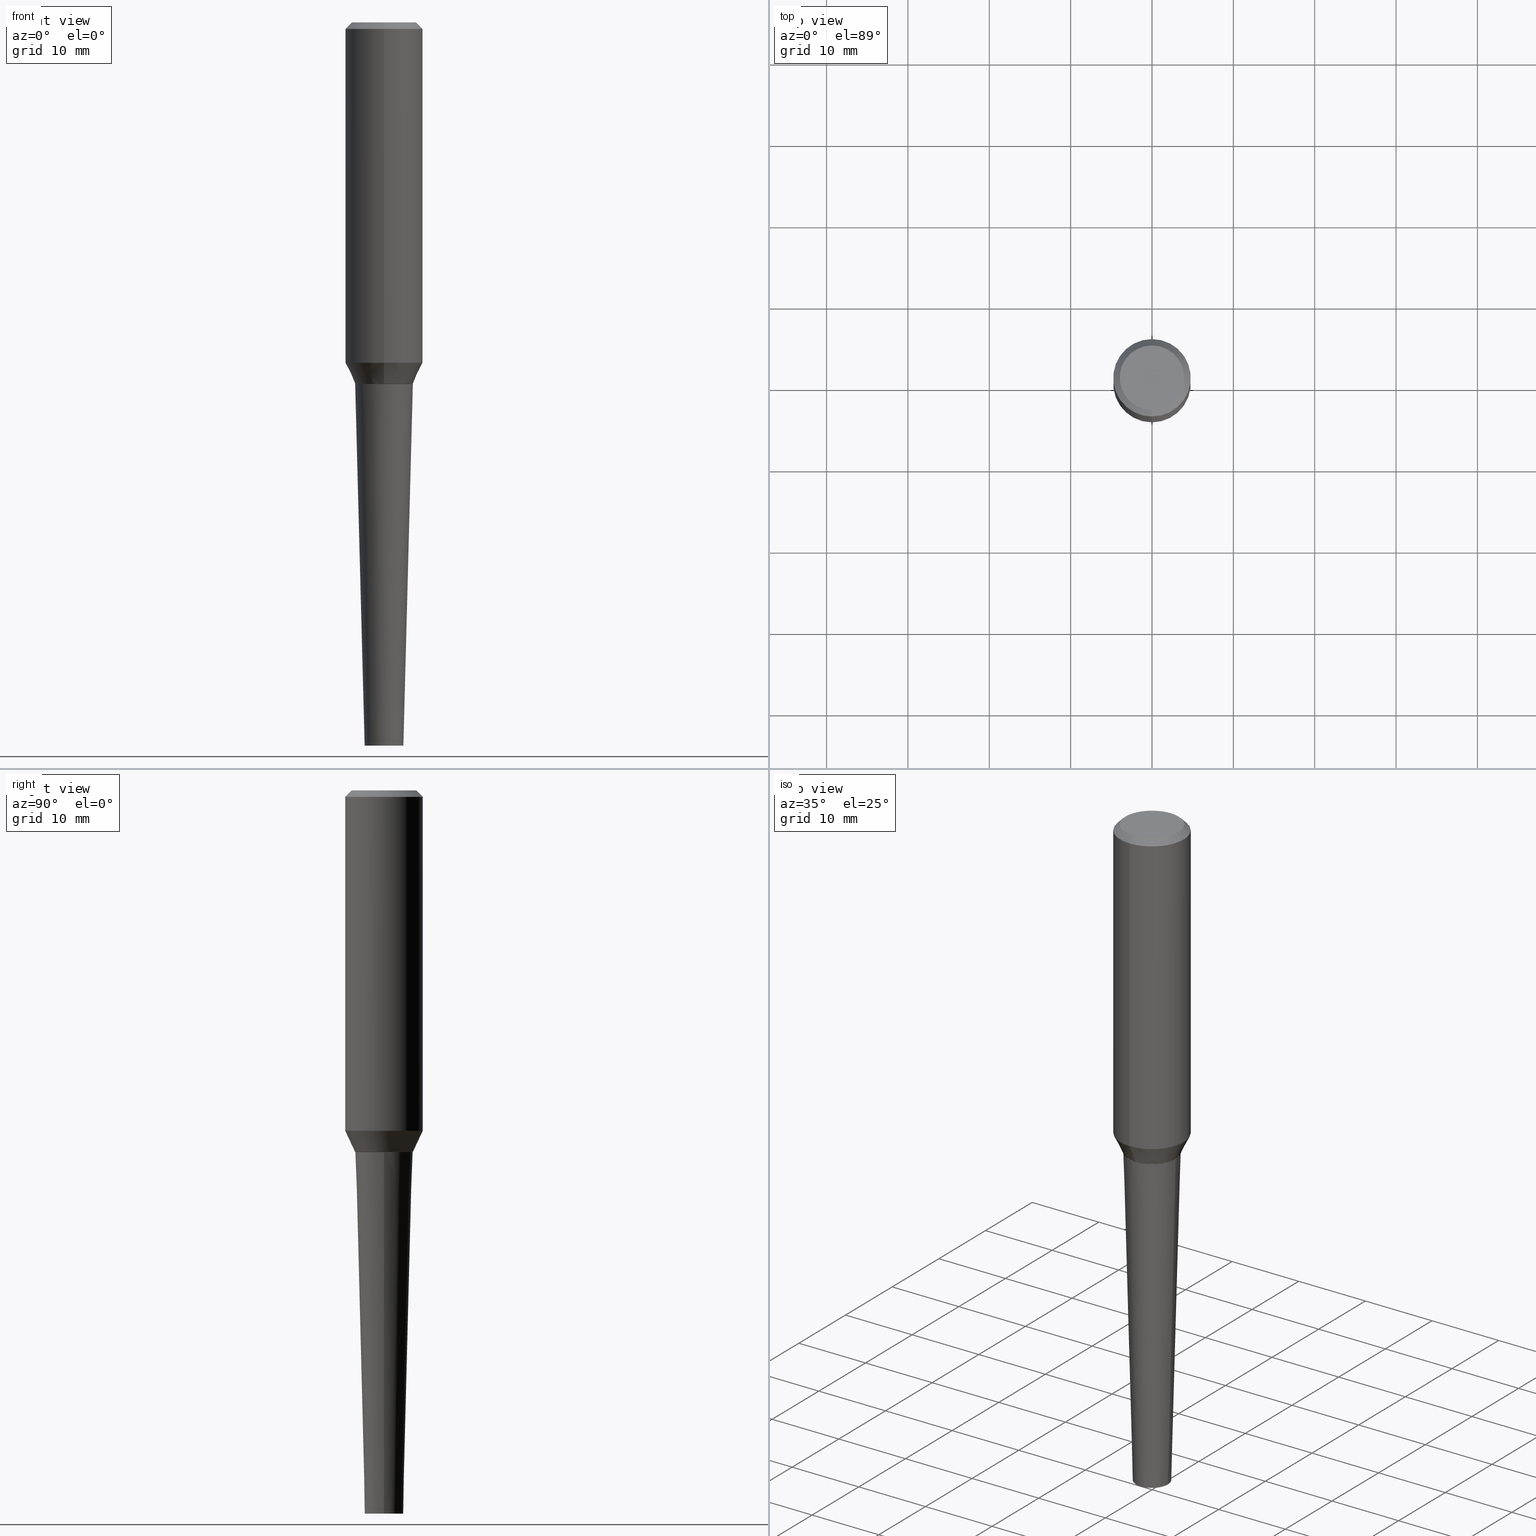
[diagram: canonical four-view strip — front | top / right | iso, engineering-drawing reading convention]
A machine part, canonical four-view strip (front | top / right | iso — engineering-drawing reading convention). The complete STEP part file that produces these views, byte-faithful:
ISO-10303-21;
HEADER;
FILE_DESCRIPTION (( 'STEP AP203' ),
    '1' );
FILE_NAME ('32318.STEP',
    '2024-03-04T15:07:12',
    ( '' ),
    ( '' ),
    'SwSTEP 2.0',
    'SolidWorks 2023',
    '' );
FILE_SCHEMA (( 'CONFIG_CONTROL_DESIGN' ));
ENDSEC;

DATA;
#1 = APPROVAL_STATUS ( 'not_yet_approved' ) ;
#2 =( NAMED_UNIT ( * ) SI_UNIT ( $, .STERADIAN. ) SOLID_ANGLE_UNIT ( ) );
#3 = CARTESIAN_POINT ( 'NONE',  ( 1.332267629550185482E-15, 0.1874999999999996947, -5.723651064753783135E-16 ) ) ;
#4 = CONICAL_SURFACE ( 'NONE', #199, 0.1390753627460646624, 0.7853981633973480259 ) ;
#5 = CALENDAR_DATE ( 2024, 4, 3 ) ;
#6 = EDGE_LOOP ( 'NONE', ( #196, #405, #241, #139 ) ) ;
#7 = DIRECTION ( 'NONE',  ( -6.982962677686266711E-15, -1.000000000000000000, 3.154607792043817714E-15 ) ) ;
#8 = EDGE_CURVE ( 'NONE', #409, #384, #254, .T. ) ;
#9 = APPROVAL_ROLE ( '' ) ;
#10 = DIRECTION ( 'NONE',  ( -2.445468806185136597E-29, 3.491481338843145583E-15, 1.000000000000000000 ) ) ;
#11 = CARTESIAN_POINT ( 'NONE',  ( 4.231880785566292542E-29, -6.178386600669429355E-15, -1.750000000000000222 ) ) ;
#12 = EDGE_LOOP ( 'NONE', ( #292, #369, #341, #204 ) ) ;
#13 = AXIS2_PLACEMENT_3D ( 'NONE', #173, #10, #401 ) ;
#14 = FACE_OUTER_BOUND ( 'NONE', #243, .T. ) ;
#15 = EDGE_CURVE ( 'NONE', #50, #267, #294, .T. ) ;
#16 = ORIENTED_EDGE ( 'NONE', *, *, #190, .F. ) ;
#17 = CARTESIAN_POINT ( 'NONE',  ( 1.200196710227327485E-15, 0.1562500000000000000, -4.857847843328356839E-16 ) ) ;
#18 = APPROVAL ( #94, 'UNSPECIFIED' ) ;
#19 = VERTEX_POINT ( 'NONE', #356 ) ;
#20 = DIRECTION ( 'NONE',  ( -6.982962677686265922E-15, -1.000000000000000000, 3.902299038693986834E-15 ) ) ;
#21 = DIRECTION ( 'NONE',  ( -6.982962677686265922E-15, -1.000000000000000000, 3.154607792043817320E-15 ) ) ;
#22 = CIRCLE ( 'NONE', #310, 0.1390753627460646624 ) ;
#23 = EDGE_CURVE ( 'NONE', #158, #377, #387, .T. ) ;
#24 = LINE ( 'NONE', #340, #358 ) ;
#25 = FACE_OUTER_BOUND ( 'NONE', #353, .T. ) ;
#26 = LINE ( 'NONE', #247, #325 ) ;
#27 = VECTOR ( 'NONE', #277, 39.37007874015748143 ) ;
#28 = CARTESIAN_POINT ( 'NONE',  ( 0.000000000000000000, 0.000000000000000000, 0.000000000000000000 ) ) ;
#29 = UNCERTAINTY_MEASURE_WITH_UNIT (LENGTH_MEASURE( 1.000000000000000082E-05 ), #31, 'distance_accuracy_value', 'NONE');
#30 = COORDINATED_UNIVERSAL_TIME_OFFSET ( 5, 0, .BEHIND. ) ;
#31 =( CONVERSION_BASED_UNIT ( 'INCH', #68 ) LENGTH_UNIT ( ) NAMED_UNIT ( #231 ) );
#32 = PLANE ( 'NONE',  #230 ) ;
#33 = AXIS2_PLACEMENT_3D ( 'NONE', #191, #225, #7 ) ;
#34 = APPLICATION_CONTEXT ( 'configuration controlled 3d designs of mechanical parts and assemblies' ) ;
#35 = ADVANCED_FACE ( 'NONE', ( #323 ), #32, .F. ) ;
#36 = AXIS2_PLACEMENT_3D ( 'NONE', #328, #169, #236 ) ;
#37 = APPROVAL_PERSON_ORGANIZATION ( #164, #281, #9 ) ;
#38 = CARTESIAN_POINT ( 'NONE',  ( 4.348926392121618958E-29, -6.004218604581146241E-15, -1.749063130645135855 ) ) ;
#39 = DIRECTION ( 'NONE',  ( -6.982962677686266711E-15, -1.000000000000000000, 3.154607792043817714E-15 ) ) ;
#40 = VERTEX_POINT ( 'NONE', #67 ) ;
#41 = EDGE_CURVE ( 'NONE', #19, #40, #144, .T. ) ;
#42 = CARTESIAN_POINT ( 'NONE',  ( 4.348926392121618958E-29, -6.004218604581146241E-15, -1.749063130645135855 ) ) ;
#43 = VERTEX_POINT ( 'NONE', #133 ) ;
#44 = CLOSED_SHELL ( 'NONE', ( #297, #212, #349, #197, #273, #224, #35, #283, #332, #125 ) ) ;
#45 = DIRECTION ( 'NONE',  ( -4.937700262164054215E-15, -0.7071067811864744090, 0.7071067811866206254 ) ) ;
#46 = EDGE_CURVE ( 'NONE', #172, #237, #286, .T. ) ;
#47 = ORIENTED_EDGE ( 'NONE', *, *, #346, .F. ) ;
#48 = CARTESIAN_POINT ( 'NONE',  ( 4.351437863747161445E-29, -6.007174059948126289E-15, -1.750000000000000000 ) ) ;
#49 = EDGE_CURVE ( 'NONE', #40, #19, #362, .T. ) ;
#50 = VERTEX_POINT ( 'NONE', #239 ) ;
#51 = CYLINDRICAL_SURFACE ( 'NONE', #279, 0.1875000000000001943 ) ;
#52 = VERTEX_POINT ( 'NONE', #296 ) ;
#53 = ADVANCED_FACE ( 'NONE', ( #266 ), #260, .T. ) ;
#54 = DIRECTION ( 'NONE',  ( -2.680706346625087460E-29, 3.154607792043817320E-15, 1.000000000000000000 ) ) ;
#55 = CARTESIAN_POINT ( 'NONE',  ( -1.286343374582167887E-15, -0.1875000000000010270, -0.03124999999999950734 ) ) ;
#56 = PRODUCT ( '32318', '32318', '', ( #357 ) ) ;
#57 = DIRECTION ( 'NONE',  ( -2.445468806185136597E-29, 3.491481338843145583E-15, 1.000000000000000000 ) ) ;
#58 = DIRECTION ( 'NONE',  ( -2.680706346625087460E-29, 3.154607792043817320E-15, 1.000000000000000000 ) ) ;
#59 = ADVANCED_FACE ( 'NONE', ( #330 ), #324, .T. ) ;
#60 = AXIS2_PLACEMENT_3D ( 'NONE', #258, #392, #229 ) ;
#61 = DATE_AND_TIME ( #352, #256 ) ;
#62 = APPLICATION_CONTEXT ( 'configuration controlled 3d designs of mechanical parts and assemblies' ) ;
#63 = PERSON_AND_ORGANIZATION_ROLE ( 'creator' ) ;
#64 = CARTESIAN_POINT ( 'NONE',  ( -1.309305502066179544E-15, -0.1875000000000006661, 6.106128155410544140E-16 ) ) ;
#65 = CC_DESIGN_PERSON_AND_ORGANIZATION_ASSIGNMENT ( #293, #70, ( #163 ) ) ;
#66 = DATE_AND_TIME ( #123, #182 ) ;
#67 = CARTESIAN_POINT ( 'NONE',  ( -9.777001911802864453E-16, -0.1400122321009344417, -1.749063130645135411 ) ) ;
#68 = LENGTH_MEASURE_WITH_UNIT ( LENGTH_MEASURE( 0.02539999999999999897 ), #252 );
#69 = DIRECTION ( 'NONE',  ( 1.000000000000000000, -6.982962677686264344E-15, 0.000000000000000000 ) ) ;
#70 = PERSON_AND_ORGANIZATION_ROLE ( 'creator' ) ;
#71 = LINE ( 'NONE', #268, #343 ) ;
#72 = AXIS2_PLACEMENT_3D ( 'NONE', #113, #218, #210 ) ;
#73 = DIRECTION ( 'NONE',  ( 2.438088387897960049E-29, -3.491481338843145188E-15, -1.000000000000000000 ) ) ;
#74 = EDGE_LOOP ( 'NONE', ( #85, #259, #112, #217 ) ) ;
#75 = DIRECTION ( 'NONE',  ( -2.445468806185136597E-29, 3.491481338843145583E-15, 1.000000000000000000 ) ) ;
#76 = ORIENTED_EDGE ( 'NONE', *, *, #46, .T. ) ;
#77 = APPROVAL_DATE_TIME ( #105, #281 ) ;
#78 = DIRECTION ( 'NONE',  ( -2.680706346625087460E-29, 3.154607792043817320E-15, 1.000000000000000000 ) ) ;
#79 = ORIENTED_EDGE ( 'NONE', *, *, #390, .T. ) ;
#80 = VECTOR ( 'NONE', #189, 39.37007874015748143 ) ;
#81 =( GEOMETRIC_REPRESENTATION_CONTEXT ( 3 ) GLOBAL_UNCERTAINTY_ASSIGNED_CONTEXT ( ( #29 ) ) GLOBAL_UNIT_ASSIGNED_CONTEXT ( ( #31, #97, #2 ) ) REPRESENTATION_CONTEXT ( 'NONE', 'WORKASPACE' ) );
#82 = CARTESIAN_POINT ( 'NONE',  ( -9.711580674414047337E-16, -0.1390753627460706576, -1.749999999999999334 ) ) ;
#83 = ORIENTED_EDGE ( 'NONE', *, *, #122, .F. ) ;
#84 = CARTESIAN_POINT ( 'NONE',  ( 4.351437863747161445E-29, -6.007174059948126289E-15, -1.750000000000000000 ) ) ;
#85 = ORIENTED_EDGE ( 'NONE', *, *, #261, .F. ) ;
#86 = CARTESIAN_POINT ( 'NONE',  ( 0.1395753627460647461, -7.084741891755795010E-15, -1.750000000000000000 ) ) ;
#87 = COORDINATED_UNIVERSAL_TIME_OFFSET ( 5, 0, .BEHIND. ) ;
#88 = CIRCLE ( 'NONE', #165, 0.1395753627460647461 ) ;
#89 = CARTESIAN_POINT ( 'NONE',  ( 4.348926392121618958E-29, -6.004218604581146241E-15, -1.749063130645135855 ) ) ;
#90 = SECURITY_CLASSIFICATION ( '', '', #124 ) ;
#91 = CARTESIAN_POINT ( 'NONE',  ( 9.881898872242144353E-16, 0.1390753627460586395, -1.750000000000000444 ) ) ;
#92 = CC_DESIGN_DATE_AND_TIME_ASSIGNMENT ( #66, #249, ( #163 ) ) ;
#93 = CARTESIAN_POINT ( 'NONE',  ( -3.397982428467408395E-30, -4.866104238714468673E-16, 1.912385453283800096E-17 ) ) ;
#94 = APPROVAL_STATUS ( 'not_yet_approved' ) ;
#95 = AXIS2_PLACEMENT_3D ( 'NONE', #248, #148, #275 ) ;
#96 = PERSON_AND_ORGANIZATION_ROLE ( 'classification_officer' ) ;
#97 =( NAMED_UNIT ( * ) PLANE_ANGLE_UNIT ( ) SI_UNIT ( $, .RADIAN. ) );
#98 = PERSON ( 'UNSPECIFIED', 'UNSPECIFIED', 'UNSPECIFIED', ('UNSPECIFIED'), ('UNSPECIFIED'), ('UNSPECIFIED') ) ;
#99 = COORDINATED_UNIVERSAL_TIME_OFFSET ( 5, 0, .BEHIND. ) ;
#100 = APPROVAL_PERSON_ORGANIZATION ( #359, #179, #195 ) ;
#101 = DIRECTION ( 'NONE',  ( -2.680706346625087460E-29, 3.154607792043817320E-15, 1.000000000000000000 ) ) ;
#102 = DIRECTION ( 'NONE',  ( -2.680706346625087460E-29, 3.154607792043817320E-15, 1.000000000000000000 ) ) ;
#103 = ORIENTED_EDGE ( 'NONE', *, *, #413, .F. ) ;
#104 = AXIS2_PLACEMENT_3D ( 'NONE', #108, #75, #167 ) ;
#105 = DATE_AND_TIME ( #329, #303 ) ;
#106 = CARTESIAN_POINT ( 'NONE',  ( -9.711580674414047337E-16, -0.1390753627460706576, -1.749999999999999334 ) ) ;
#107 = CC_DESIGN_PERSON_AND_ORGANIZATION_ASSIGNMENT ( #386, #96, ( #90 ) ) ;
#108 = CARTESIAN_POINT ( 'NONE',  ( 8.559140821647976968E-29, -1.222018468595100934E-14, -3.500000000000000000 ) ) ;
#109 = DIRECTION ( 'NONE',  ( 2.438088387897960049E-29, -3.491481338843145188E-15, -1.000000000000000000 ) ) ;
#110 = ORIENTED_EDGE ( 'NONE', *, *, #8, .T. ) ;
#111 = LINE ( 'NONE', #181, #415 ) ;
#112 = ORIENTED_EDGE ( 'NONE', *, *, #190, .T. ) ;
#113 = CARTESIAN_POINT ( 'NONE',  ( -2.560261695147064885E-30, -5.851919173728164913E-16, -0.03125000000000010408 ) ) ;
#114 = EDGE_LOOP ( 'NONE', ( #402, #334, #132, #16 ) ) ;
#115 = LINE ( 'NONE', #414, #271 ) ;
#116 = ADVANCED_FACE ( 'NONE', ( #234 ), #317, .T. ) ;
#117 = AXIS2_PLACEMENT_3D ( 'NONE', #48, #101, #363 ) ;
#118 = FACE_OUTER_BOUND ( 'NONE', #373, .T. ) ;
#119 = EDGE_CURVE ( 'NONE', #377, #267, #370, .T. ) ;
#120 = DIRECTION ( 'NONE',  ( -0.02617694830786604712, 3.676283300035236100E-15, 0.9996573249755573709 ) ) ;
#121 = PRODUCT_DEFINITION_SHAPE ( 'NONE', 'NONE',  #163 ) ;
#122 = EDGE_CURVE ( 'NONE', #136, #52, #385, .T. ) ;
#123 = CALENDAR_DATE ( 2024, 4, 3 ) ;
#124 = SECURITY_CLASSIFICATION_LEVEL ( 'unclassified' ) ;
#125 = ADVANCED_FACE ( 'NONE', ( #205 ), #302, .T. ) ;
#126 = AXIS2_PLACEMENT_3D ( 'NONE', #42, #399, #140 ) ;
#127 = DIRECTION ( 'NONE',  ( -2.445468806185136597E-29, 3.491481338843145583E-15, 1.000000000000000000 ) ) ;
#128 = CLOSED_SHELL ( 'NONE', ( #59, #53, #116, #160 ) ) ;
#129 = CIRCLE ( 'NONE', #177, 0.09375000000000006939 ) ;
#130 = EDGE_CURVE ( 'NONE', #267, #377, #220, .T. ) ;
#131 = FACE_OUTER_BOUND ( 'NONE', #6, .T. ) ;
#132 = ORIENTED_EDGE ( 'NONE', *, *, #390, .F. ) ;
#133 = CARTESIAN_POINT ( 'NONE',  ( 9.915183157964884947E-16, 0.1390753627460586395, -1.750000000000000444 ) ) ;
#134 = CC_DESIGN_PERSON_AND_ORGANIZATION_ASSIGNMENT ( #255, #161, ( #56 ) ) ;
#135 = AXIS2_PLACEMENT_3D ( 'NONE', #203, #371, #366 ) ;
#136 = VERTEX_POINT ( 'NONE', #300 ) ;
#137 = PRODUCT_DEFINITION_FORMATION_WITH_SPECIFIED_SOURCE ( 'ANY', '', #56, .NOT_KNOWN. ) ;
#138 = CARTESIAN_POINT ( 'NONE',  ( -1.309305502066133790E-15, -0.1875000000000056066, -1.647225283746024838 ) ) ;
#139 = ORIENTED_EDGE ( 'NONE', *, *, #149, .F. ) ;
#140 = DIRECTION ( 'NONE',  ( -6.982962677686265922E-15, -1.000000000000000000, 3.902299038693986045E-15 ) ) ;
#141 = ORIENTED_EDGE ( 'NONE', *, *, #290, .F. ) ;
#142 = CARTESIAN_POINT ( 'NONE',  ( -1.179148093366988298E-15, -0.1562500000000009714, 5.000301506808602607E-16 ) ) ;
#143 = ORIENTED_EDGE ( 'NONE', *, *, #316, .T. ) ;
#144 = CIRCLE ( 'NONE', #379, 0.1400122321009285020 ) ;
#145 = CONICAL_SURFACE ( 'NONE', #95, 0.1875000000000004718, 0.7853981633974461696 ) ;
#146 = CARTESIAN_POINT ( 'NONE',  ( -1.286343374582167887E-15, -0.1875000000000010270, -0.03124999999999950734 ) ) ;
#147 = CARTESIAN_POINT ( 'NONE',  ( 4.351437863747161445E-29, -6.007174059948126289E-15, -1.750000000000000000 ) ) ;
#148 = DIRECTION ( 'NONE',  ( 2.680706346625087460E-29, -3.154607792043817320E-15, -1.000000000000000000 ) ) ;
#149 = EDGE_CURVE ( 'NONE', #184, #40, #333, .T. ) ;
#150 = CC_DESIGN_APPROVAL ( #179, ( #163 ) ) ;
#151 = DIRECTION ( 'NONE',  ( -2.445468806185136597E-29, 3.491481338843145583E-15, 1.000000000000000000 ) ) ;
#152 = COORDINATED_UNIVERSAL_TIME_OFFSET ( 5, 0, .BEHIND. ) ;
#153 = PERSON_AND_ORGANIZATION_ROLE ( 'design_supplier' ) ;
#154 = AXIS2_PLACEMENT_3D ( 'NONE', #38, #102, #20 ) ;
#155 = COORDINATED_UNIVERSAL_TIME_OFFSET ( 5, 0, .BEHIND. ) ;
#156 = CIRCLE ( 'NONE', #287, 0.1874999999999999445 ) ;
#157 = CONICAL_SURFACE ( 'NONE', #117, 0.1390753627460646624, 0.7853981633973480259 ) ;
#158 = VERTEX_POINT ( 'NONE', #138 ) ;
#159 = CC_DESIGN_APPROVAL ( #281, ( #90 ) ) ;
#160 = ADVANCED_FACE ( 'NONE', ( #14 ), #361, .F. ) ;
#161 = PERSON_AND_ORGANIZATION_ROLE ( 'design_owner' ) ;
#162 = EDGE_LOOP ( 'NONE', ( #76, #263 ) ) ;
#163 = PRODUCT_DEFINITION ( 'UNKNOWN', '', #137, #282 ) ;
#164 = PERSON_AND_ORGANIZATION ( #98, #372 ) ;
#165 = AXIS2_PLACEMENT_3D ( 'NONE', #312, #57, #374 ) ;
#166 = CYLINDRICAL_SURFACE ( 'NONE', #60, 0.1875000000000001943 ) ;
#167 = DIRECTION ( 'NONE',  ( 1.000000000000000000, -6.982962677686257244E-15, 0.000000000000000000 ) ) ;
#168 = ORIENTED_EDGE ( 'NONE', *, *, #253, .F. ) ;
#169 = DIRECTION ( 'NONE',  ( -2.680706346625087460E-29, 3.154607792043817320E-15, 1.000000000000000000 ) ) ;
#170 = EDGE_LOOP ( 'NONE', ( #79, #304, #365, #308 ) ) ;
#171 = DIRECTION ( 'NONE',  ( -1.000000000000000000, 6.982962677686265922E-15, -4.876176775795935793E-29 ) ) ;
#172 = VERTEX_POINT ( 'NONE', #17 ) ;
#173 = CARTESIAN_POINT ( 'NONE',  ( 8.559140821647976968E-29, -1.222018468595100934E-14, -3.500000000000000000 ) ) ;
#174 = ORIENTED_EDGE ( 'NONE', *, *, #411, .T. ) ;
#175 = DIRECTION ( 'NONE',  ( 0.02617694830786604712, 3.307492242340466312E-15, 0.9996573249755573709 ) ) ;
#176 = ORIENTED_EDGE ( 'NONE', *, *, #130, .T. ) ;
#177 = AXIS2_PLACEMENT_3D ( 'NONE', #270, #151, #280 ) ;
#178 = DIRECTION ( 'NONE',  ( -2.680706346625087460E-29, 3.154607792043817320E-15, 1.000000000000000000 ) ) ;
#179 = APPROVAL ( #1, 'UNSPECIFIED' ) ;
#180 = DIRECTION ( 'NONE',  ( 4.937700262164538576E-15, 0.7071067811865437980, -0.7071067811865512365 ) ) ;
#181 = CARTESIAN_POINT ( 'NONE',  ( 9.948467443687619624E-16, 0.1400122321009225068, -1.749063130645136299 ) ) ;
#182 = LOCAL_TIME ( 10, 7, 12.00000000000000000, #152 ) ;
#183 = CARTESIAN_POINT ( 'NONE',  ( 4.075929029612539620E-29, -5.682960139228246655E-15, -1.647225283746025504 ) ) ;
#184 = VERTEX_POINT ( 'NONE', #106 ) ;
#185 = APPROVAL_DATE_TIME ( #61, #18 ) ;
#186 = ORIENTED_EDGE ( 'NONE', *, *, #406, .T. ) ;
#187 = ORIENTED_EDGE ( 'NONE', *, *, #290, .T. ) ;
#188 = DIRECTION ( 'NONE',  ( 0.000000000000000000, 0.000000000000000000, 1.000000000000000000 ) ) ;
#189 = DIRECTION ( 'NONE',  ( -2.680706346625087460E-29, 3.154607792043817320E-15, 1.000000000000000000 ) ) ;
#190 = EDGE_CURVE ( 'NONE', #40, #158, #71, .T. ) ;
#191 = CARTESIAN_POINT ( 'NONE',  ( -3.397982428467407694E-30, -4.866104238714468673E-16, 7.122683174012249869E-18 ) ) ;
#192 = AXIS2_PLACEMENT_3D ( 'NONE', #89, #416, #245 ) ;
#193 = CARTESIAN_POINT ( 'NONE',  ( 4.348926392121618958E-29, -6.004218604581146241E-15, -1.749063130645135855 ) ) ;
#194 = APPROVAL_DATE_TIME ( #284, #179 ) ;
#195 = APPROVAL_ROLE ( '' ) ;
#196 = ORIENTED_EDGE ( 'NONE', *, *, #354, .T. ) ;
#197 = ADVANCED_FACE ( 'NONE', ( #131 ), #157, .T. ) ;
#198 = CARTESIAN_POINT ( 'NONE',  ( 8.559140821647976968E-29, -1.222018468595100934E-14, -3.500000000000000000 ) ) ;
#199 = AXIS2_PLACEMENT_3D ( 'NONE', #84, #178, #347 ) ;
#200 = PRODUCT_RELATED_PRODUCT_CATEGORY ( 'detail', '', ( #56 ) ) ;
#201 = FACE_OUTER_BOUND ( 'NONE', #331, .T. ) ;
#202 = ORIENTED_EDGE ( 'NONE', *, *, #8, .F. ) ;
#203 = CARTESIAN_POINT ( 'NONE',  ( -2.560261695147064885E-30, -5.851919173728164913E-16, -0.03125000000000010408 ) ) ;
#204 = ORIENTED_EDGE ( 'NONE', *, *, #301, .F. ) ;
#205 = FACE_OUTER_BOUND ( 'NONE', #74, .T. ) ;
#206 = AXIS2_PLACEMENT_3D ( 'NONE', #183, #319, #274 ) ;
#207 = CARTESIAN_POINT ( 'NONE',  ( -3.397982428467407694E-30, -4.866104238714468673E-16, 7.122683174012249869E-18 ) ) ;
#208 = LINE ( 'NONE', #55, #27 ) ;
#209 = EDGE_LOOP ( 'NONE', ( #83, #313 ) ) ;
#210 = DIRECTION ( 'NONE',  ( 6.982962677686265922E-15, 1.000000000000000000, -3.164390592661096858E-15 ) ) ;
#211 = AXIS2_PLACEMENT_3D ( 'NONE', #391, #109, #336 ) ;
#212 = ADVANCED_FACE ( 'NONE', ( #228 ), #166, .T. ) ;
#213 = CIRCLE ( 'NONE', #33, 0.1562500000000004718 ) ;
#214 = APPROVAL_PERSON_ORGANIZATION ( #383, #18, #221 ) ;
#215 = FACE_OUTER_BOUND ( 'NONE', #114, .T. ) ;
#216 = CARTESIAN_POINT ( 'NONE',  ( 1.309305502066175600E-15, 0.1874999999999998890, -0.03125000000000069389 ) ) ;
#217 = ORIENTED_EDGE ( 'NONE', *, *, #406, .F. ) ;
#218 = DIRECTION ( 'NONE',  ( 2.680706346625087460E-29, -3.154607792043817320E-15, -1.000000000000000000 ) ) ;
#219 = ORIENTED_EDGE ( 'NONE', *, *, #301, .T. ) ;
#220 = CIRCLE ( 'NONE', #36, 0.1875000000000004718 ) ;
#221 = APPROVAL_ROLE ( '' ) ;
#222 = CC_DESIGN_APPROVAL ( #18, ( #137 ) ) ;
#223 = DIRECTION ( 'NONE',  ( 6.982962677686265922E-15, 1.000000000000000000, -3.154607792043817320E-15 ) ) ;
#224 = ADVANCED_FACE ( 'NONE', ( #201 ), #298, .F. ) ;
#225 = DIRECTION ( 'NONE',  ( -2.680706346625087460E-29, 3.154607792043817320E-15, 1.000000000000000000 ) ) ;
#226 = AXIS2_PLACEMENT_3D ( 'NONE', #28, #188, #250 ) ;
#227 = ORIENTED_EDGE ( 'NONE', *, *, #46, .F. ) ;
#228 = FACE_OUTER_BOUND ( 'NONE', #170, .T. ) ;
#229 = DIRECTION ( 'NONE',  ( -6.982962677686265922E-15, -1.000000000000000000, 3.154607792043817320E-15 ) ) ;
#230 = AXIS2_PLACEMENT_3D ( 'NONE', #291, #388, #223 ) ;
#231 = DIMENSIONAL_EXPONENTS ( 1.000000000000000000, 0.000000000000000000, 0.000000000000000000, 0.000000000000000000, 0.000000000000000000, 0.000000000000000000, 0.000000000000000000 ) ;
#232 = CONICAL_SURFACE ( 'NONE', #72, 0.1875000000000004718, 0.7853981633974461696 ) ;
#233 = ORIENTED_EDGE ( 'NONE', *, *, #41, .F. ) ;
#234 = FACE_OUTER_BOUND ( 'NONE', #12, .T. ) ;
#235 = ORIENTED_EDGE ( 'NONE', *, *, #15, .F. ) ;
#236 = DIRECTION ( 'NONE',  ( -6.982962677686265922E-15, -1.000000000000000000, 3.164390592661096858E-15 ) ) ;
#237 = VERTEX_POINT ( 'NONE', #142 ) ;
#238 = EDGE_CURVE ( 'NONE', #52, #136, #129, .T. ) ;
#239 = CARTESIAN_POINT ( 'NONE',  ( 1.332267629550207373E-15, 0.1874999999999942824, -1.647225283746025948 ) ) ;
#240 = AXIS2_PLACEMENT_3D ( 'NONE', #368, #73, #171 ) ;
#241 = ORIENTED_EDGE ( 'NONE', *, *, #49, .F. ) ;
#242 = DIRECTION ( 'NONE',  ( -6.982962677686265922E-15, -1.000000000000000000, 3.154607792043817320E-15 ) ) ;
#243 = EDGE_LOOP ( 'NONE', ( #110, #219 ) ) ;
#244 = DIRECTION ( 'NONE',  ( -2.680706346625087460E-29, 3.154607792043817320E-15, 1.000000000000000000 ) ) ;
#245 = DIRECTION ( 'NONE',  ( -6.982962677686265922E-15, -1.000000000000000000, 3.902299038693986045E-15 ) ) ;
#246 = CIRCLE ( 'NONE', #206, 0.1874999999999999445 ) ;
#247 = CARTESIAN_POINT ( 'NONE',  ( 1.309305502066175600E-15, 0.1874999999999998890, -0.03125000000000069389 ) ) ;
#248 = CARTESIAN_POINT ( 'NONE',  ( -2.560261695147064885E-30, -5.851919173728164913E-16, -0.03125000000000010408 ) ) ;
#249 = DATE_TIME_ROLE ( 'creation_date' ) ;
#250 = DIRECTION ( 'NONE',  ( 1.000000000000000000, 0.000000000000000000, 0.000000000000000000 ) ) ;
#251 = DIRECTION ( 'NONE',  ( -2.680706346625087460E-29, 3.154607792043817320E-15, 1.000000000000000000 ) ) ;
#252 =( LENGTH_UNIT ( ) NAMED_UNIT ( * ) SI_UNIT ( $, .METRE. ) );
#253 = EDGE_CURVE ( 'NONE', #43, #19, #407, .T. ) ;
#254 = CIRCLE ( 'NONE', #327, 0.1395753627460647461 ) ;
#255 = PERSON_AND_ORGANIZATION ( #98, #372 ) ;
#256 = LOCAL_TIME ( 10, 7, 12.00000000000000000, #30 ) ;
#257 = DIRECTION ( 'NONE',  ( -2.680706346625087460E-29, 3.154607792043817320E-15, 1.000000000000000000 ) ) ;
#258 = CARTESIAN_POINT ( 'NONE',  ( -3.397982428467408395E-30, -4.866104238714468673E-16, 1.912385453283800096E-17 ) ) ;
#259 = ORIENTED_EDGE ( 'NONE', *, *, #41, .T. ) ;
#260 = PLANE ( 'NONE',  #211 ) ;
#261 = EDGE_CURVE ( 'NONE', #19, #50, #111, .T. ) ;
#262 = ADVANCED_BREP_SHAPE_REPRESENTATION ( '32318', ( #264, #276, #226 ), #81 ) ;
#263 = ORIENTED_EDGE ( 'NONE', *, *, #413, .T. ) ;
#264 = MANIFOLD_SOLID_BREP ( 'Body-Move/Copy2[1]', #128 ) ;
#265 = APPROVAL_STATUS ( 'not_yet_approved' ) ;
#266 = FACE_OUTER_BOUND ( 'NONE', #209, .T. ) ;
#267 = VERTEX_POINT ( 'NONE', #216 ) ;
#268 = CARTESIAN_POINT ( 'NONE',  ( -9.777001911802872341E-16, -0.1400122321009345250, -1.749063130645135411 ) ) ;
#269 = ORIENTED_EDGE ( 'NONE', *, *, #122, .T. ) ;
#270 = CARTESIAN_POINT ( 'NONE',  ( 8.559140821647976968E-29, -1.222018468595100934E-14, -3.500000000000000000 ) ) ;
#271 = VECTOR ( 'NONE', #175, 39.37007874015748143 ) ;
#272 = ORIENTED_EDGE ( 'NONE', *, *, #130, .F. ) ;
#273 = ADVANCED_FACE ( 'NONE', ( #118 ), #4, .T. ) ;
#274 = DIRECTION ( 'NONE',  ( -6.982962677686266711E-15, -1.000000000000000000, 2.913971193241881555E-15 ) ) ;
#275 = DIRECTION ( 'NONE',  ( 6.982962677686265922E-15, 1.000000000000000000, -3.164390592661096858E-15 ) ) ;
#276 = MANIFOLD_SOLID_BREP ( 'Body-Move/Copy2[2]', #44 ) ;
#277 = DIRECTION ( 'NONE',  ( -4.851104656540951653E-15, -0.7071067811865482389, -0.7071067811865467956 ) ) ;
#278 = ORIENTED_EDGE ( 'NONE', *, *, #321, .F. ) ;
#279 = AXIS2_PLACEMENT_3D ( 'NONE', #93, #58, #21 ) ;
#280 = DIRECTION ( 'NONE',  ( 1.000000000000000000, -6.982962677686257244E-15, 0.000000000000000000 ) ) ;
#281 = APPROVAL ( #265, 'UNSPECIFIED' ) ;
#282 = DESIGN_CONTEXT ( 'detailed design', #62, 'design' ) ;
#283 = ADVANCED_FACE ( 'NONE', ( #345 ), #232, .T. ) ;
#284 = DATE_AND_TIME ( #5, #337 ) ;
#285 = CARTESIAN_POINT ( 'NONE',  ( 4.279570410823988484E-29, -6.110092342975504671E-15, -1.750000000000000000 ) ) ;
#286 = CIRCLE ( 'NONE', #350, 0.1562500000000004718 ) ;
#287 = AXIS2_PLACEMENT_3D ( 'NONE', #410, #244, #376 ) ;
#288 = CALENDAR_DATE ( 2024, 4, 3 ) ;
#289 = LOCAL_TIME ( 10, 7, 12.00000000000000000, #155 ) ;
#290 = EDGE_CURVE ( 'NONE', #237, #377, #208, .T. ) ;
#291 = CARTESIAN_POINT ( 'NONE',  ( 1.091087918388478976E-15, 0.1562500000000000000, -4.797841986534229262E-16 ) ) ;
#292 = ORIENTED_EDGE ( 'NONE', *, *, #316, .F. ) ;
#293 = PERSON_AND_ORGANIZATION ( #98, #372 ) ;
#294 = LINE ( 'NONE', #3, #395 ) ;
#295 = AXIS2_PLACEMENT_3D ( 'NONE', #11, #381, #242 ) ;
#296 = CARTESIAN_POINT ( 'NONE',  ( -0.09375000000000006939, -8.336200306624222789E-15, -3.500000000000000000 ) ) ;
#297 = ADVANCED_FACE ( 'NONE', ( #215 ), #344, .T. ) ;
#298 = PLANE ( 'NONE',  #295 ) ;
#299 = EDGE_LOOP ( 'NONE', ( #269, #143, #202, #47 ) ) ;
#300 = CARTESIAN_POINT ( 'NONE',  ( 0.09375000000000006939, -1.287483743698409606E-14, -3.500000000000000000 ) ) ;
#301 = EDGE_CURVE ( 'NONE', #384, #409, #88, .T. ) ;
#302 = CONICAL_SURFACE ( 'NONE', #126, 0.1400122321009285298, 0.4363323129985821058 ) ;
#303 = LOCAL_TIME ( 10, 7, 12.00000000000000000, #87 ) ;
#304 = ORIENTED_EDGE ( 'NONE', *, *, #15, .T. ) ;
#305 = DIRECTION ( 'NONE',  ( -6.982962677686265922E-15, -1.000000000000000000, 3.902299038693986834E-15 ) ) ;
#306 = EDGE_LOOP ( 'NONE', ( #141, #227, #367, #176 ) ) ;
#307 = DIRECTION ( 'NONE',  ( 1.000000000000000000, -6.982962677686257244E-15, 0.000000000000000000 ) ) ;
#308 = ORIENTED_EDGE ( 'NONE', *, *, #23, .F. ) ;
#309 = DIRECTION ( 'NONE',  ( -2.680706346625087460E-29, 3.154607792043817320E-15, 1.000000000000000000 ) ) ;
#310 = AXIS2_PLACEMENT_3D ( 'NONE', #147, #309, #382 ) ;
#311 = ORIENTED_EDGE ( 'NONE', *, *, #354, .F. ) ;
#312 = CARTESIAN_POINT ( 'NONE',  ( 4.279570410823988484E-29, -6.110092342975504671E-15, -1.750000000000000000 ) ) ;
#313 = ORIENTED_EDGE ( 'NONE', *, *, #238, .F. ) ;
#314 = FACE_OUTER_BOUND ( 'NONE', #375, .T. ) ;
#315 = DIRECTION ( 'NONE',  ( 5.024295867787556730E-15, 0.7071067811864788499, 0.7071067811866161845 ) ) ;
#316 = EDGE_CURVE ( 'NONE', #52, #384, #24, .T. ) ;
#317 = CONICAL_SURFACE ( 'NONE', #104, 0.09375000000000006939, 0.02617993877990783605 ) ;
#318 = CIRCLE ( 'NONE', #396, 0.1390753627460646624 ) ;
#319 = DIRECTION ( 'NONE',  ( -2.680706346625087460E-29, 3.154607792043817320E-15, 1.000000000000000000 ) ) ;
#320 = APPLICATION_PROTOCOL_DEFINITION ( 'international standard', 'config_control_design', 1994, #62 ) ;
#321 = EDGE_CURVE ( 'NONE', #172, #267, #26, .T. ) ;
#322 = PERSON_AND_ORGANIZATION ( #98, #372 ) ;
#323 = FACE_OUTER_BOUND ( 'NONE', #162, .T. ) ;
#324 = CONICAL_SURFACE ( 'NONE', #13, 0.09375000000000006939, 0.02617993877990783605 ) ;
#325 = VECTOR ( 'NONE', #180, 39.37007874015748143 ) ;
#326 = APPLICATION_PROTOCOL_DEFINITION ( 'international standard', 'config_control_design', 1994, #34 ) ;
#327 = AXIS2_PLACEMENT_3D ( 'NONE', #285, #127, #69 ) ;
#328 = CARTESIAN_POINT ( 'NONE',  ( -2.560261695147064885E-30, -5.851919173728164913E-16, -0.03125000000000010408 ) ) ;
#329 = CALENDAR_DATE ( 2024, 4, 3 ) ;
#330 = FACE_OUTER_BOUND ( 'NONE', #299, .T. ) ;
#331 = EDGE_LOOP ( 'NONE', ( #311, #389 ) ) ;
#332 = ADVANCED_FACE ( 'NONE', ( #314 ), #51, .T. ) ;
#333 = LINE ( 'NONE', #82, #351 ) ;
#334 = ORIENTED_EDGE ( 'NONE', *, *, #261, .T. ) ;
#335 = SHAPE_DEFINITION_REPRESENTATION ( #121, #262 ) ;
#336 = DIRECTION ( 'NONE',  ( -1.000000000000000000, 6.982962677686265922E-15, -4.876176775795935793E-29 ) ) ;
#337 = LOCAL_TIME ( 10, 7, 12.00000000000000000, #99 ) ;
#338 = ORIENTED_EDGE ( 'NONE', *, *, #149, .T. ) ;
#339 = DIRECTION ( 'NONE',  ( -2.445468806185136597E-29, 3.491481338843145583E-15, 1.000000000000000000 ) ) ;
#340 = CARTESIAN_POINT ( 'NONE',  ( -0.09375000000000006939, -1.155405087117591384E-14, -3.500000000000000000 ) ) ;
#341 = ORIENTED_EDGE ( 'NONE', *, *, #346, .T. ) ;
#342 = CARTESIAN_POINT ( 'NONE',  ( 4.351437863747161445E-29, -6.007174059948126289E-15, -1.750000000000000000 ) ) ;
#343 = VECTOR ( 'NONE', #404, 39.37007874015748854 ) ;
#344 = CONICAL_SURFACE ( 'NONE', #192, 0.1400122321009285298, 0.4363323129985821058 ) ;
#345 = FACE_OUTER_BOUND ( 'NONE', #306, .T. ) ;
#346 = EDGE_CURVE ( 'NONE', #136, #409, #115, .T. ) ;
#347 = DIRECTION ( 'NONE',  ( -6.982962677686265133E-15, -1.000000000000000000, 3.928586544336106530E-15 ) ) ;
#348 = CARTESIAN_POINT ( 'NONE',  ( -0.1395753627460647461, -5.118349742072530161E-15, -1.750000000000000000 ) ) ;
#349 = ADVANCED_FACE ( 'NONE', ( #25 ), #145, .T. ) ;
#350 = AXIS2_PLACEMENT_3D ( 'NONE', #207, #257, #39 ) ;
#351 = VECTOR ( 'NONE', #45, 39.37007874015748143 ) ;
#352 = CALENDAR_DATE ( 2024, 4, 3 ) ;
#353 = EDGE_LOOP ( 'NONE', ( #103, #187, #394, #278 ) ) ;
#354 = EDGE_CURVE ( 'NONE', #184, #43, #22, .T. ) ;
#355 = PERSON_AND_ORGANIZATION ( #98, #372 ) ;
#356 = CARTESIAN_POINT ( 'NONE',  ( 9.948467443687629485E-16, 0.1400122321009226178, -1.749063130645136299 ) ) ;
#357 = MECHANICAL_CONTEXT ( 'NONE', #34, 'mechanical' ) ;
#358 = VECTOR ( 'NONE', #120, 39.37007874015748143 ) ;
#359 = PERSON_AND_ORGANIZATION ( #98, #372 ) ;
#360 = CC_DESIGN_PERSON_AND_ORGANIZATION_ASSIGNMENT ( #355, #63, ( #137 ) ) ;
#361 = PLANE ( 'NONE',  #240 ) ;
#362 = CIRCLE ( 'NONE', #154, 0.1400122321009285020 ) ;
#363 = DIRECTION ( 'NONE',  ( -6.982962677686265133E-15, -1.000000000000000000, 3.928586544336106530E-15 ) ) ;
#364 = CC_DESIGN_PERSON_AND_ORGANIZATION_ASSIGNMENT ( #322, #153, ( #137 ) ) ;
#365 = ORIENTED_EDGE ( 'NONE', *, *, #119, .F. ) ;
#366 = DIRECTION ( 'NONE',  ( -6.982962677686265922E-15, -1.000000000000000000, 3.164390592661096858E-15 ) ) ;
#367 = ORIENTED_EDGE ( 'NONE', *, *, #321, .T. ) ;
#368 = CARTESIAN_POINT ( 'NONE',  ( 9.746495487803351072E-16, 0.1395753627460586399, -1.750000000000000666 ) ) ;
#369 = ORIENTED_EDGE ( 'NONE', *, *, #238, .T. ) ;
#370 = CIRCLE ( 'NONE', #135, 0.1875000000000004718 ) ;
#371 = DIRECTION ( 'NONE',  ( -2.680706346625087460E-29, 3.154607792043817320E-15, 1.000000000000000000 ) ) ;
#372 = ORGANIZATION ( 'UNSPECIFIED', 'UNSPECIFIED', '' ) ;
#373 = EDGE_LOOP ( 'NONE', ( #168, #174, #338, #233 ) ) ;
#374 = DIRECTION ( 'NONE',  ( 1.000000000000000000, -6.982962677686264344E-15, 0.000000000000000000 ) ) ;
#375 = EDGE_LOOP ( 'NONE', ( #235, #186, #400, #272 ) ) ;
#376 = DIRECTION ( 'NONE',  ( -6.982962677686266711E-15, -1.000000000000000000, 2.913971193241881555E-15 ) ) ;
#377 = VERTEX_POINT ( 'NONE', #146 ) ;
#378 = DIRECTION ( 'NONE',  ( -6.982962677686265133E-15, -1.000000000000000000, 3.928586544336106530E-15 ) ) ;
#379 = AXIS2_PLACEMENT_3D ( 'NONE', #193, #78, #305 ) ;
#380 = VECTOR ( 'NONE', #315, 39.37007874015748143 ) ;
#381 = DIRECTION ( 'NONE',  ( -2.680706346625086899E-29, 3.154607792043817320E-15, 1.000000000000000000 ) ) ;
#382 = DIRECTION ( 'NONE',  ( -6.982962677686265133E-15, -1.000000000000000000, 3.928586544336106530E-15 ) ) ;
#383 = PERSON_AND_ORGANIZATION ( #98, #372 ) ;
#384 = VERTEX_POINT ( 'NONE', #348 ) ;
#385 = CIRCLE ( 'NONE', #408, 0.09375000000000006939 ) ;
#386 = PERSON_AND_ORGANIZATION ( #98, #372 ) ;
#387 = LINE ( 'NONE', #64, #80 ) ;
#388 = DIRECTION ( 'NONE',  ( 2.680706346625086899E-29, -3.154607792043817320E-15, -1.000000000000000000 ) ) ;
#389 = ORIENTED_EDGE ( 'NONE', *, *, #411, .F. ) ;
#390 = EDGE_CURVE ( 'NONE', #158, #50, #246, .T. ) ;
#391 = CARTESIAN_POINT ( 'NONE',  ( 6.546527510331736872E-16, 0.09374999999998785694, -3.500000000000000444 ) ) ;
#392 = DIRECTION ( 'NONE',  ( -2.680706346625087460E-29, 3.154607792043817320E-15, 1.000000000000000000 ) ) ;
#393 = CC_DESIGN_DATE_AND_TIME_ASSIGNMENT ( #403, #397, ( #90 ) ) ;
#394 = ORIENTED_EDGE ( 'NONE', *, *, #119, .T. ) ;
#395 = VECTOR ( 'NONE', #251, 39.37007874015748143 ) ;
#396 = AXIS2_PLACEMENT_3D ( 'NONE', #342, #54, #378 ) ;
#397 = DATE_TIME_ROLE ( 'classification_date' ) ;
#398 = CC_DESIGN_SECURITY_CLASSIFICATION ( #90, ( #137 ) ) ;
#399 = DIRECTION ( 'NONE',  ( -2.680706346625087460E-29, 3.154607792043817320E-15, 1.000000000000000000 ) ) ;
#400 = ORIENTED_EDGE ( 'NONE', *, *, #23, .T. ) ;
#401 = DIRECTION ( 'NONE',  ( 1.000000000000000000, -6.982962677686257244E-15, 0.000000000000000000 ) ) ;
#402 = ORIENTED_EDGE ( 'NONE', *, *, #49, .T. ) ;
#403 = DATE_AND_TIME ( #288, #289 ) ;
#404 = DIRECTION ( 'NONE',  ( -2.951127548643972105E-15, -0.4226182617406963327, 0.9063077870366513800 ) ) ;
#405 = ORIENTED_EDGE ( 'NONE', *, *, #253, .T. ) ;
#406 = EDGE_CURVE ( 'NONE', #50, #158, #156, .T. ) ;
#407 = LINE ( 'NONE', #91, #380 ) ;
#408 = AXIS2_PLACEMENT_3D ( 'NONE', #198, #339, #307 ) ;
#409 = VERTEX_POINT ( 'NONE', #86 ) ;
#410 = CARTESIAN_POINT ( 'NONE',  ( 4.075929029612539620E-29, -5.682960139228246655E-15, -1.647225283746025504 ) ) ;
#411 = EDGE_CURVE ( 'NONE', #43, #184, #318, .T. ) ;
#412 = DIRECTION ( 'NONE',  ( 3.002883358794119790E-15, 0.4226182617407020503, 0.9063077870366487154 ) ) ;
#413 = EDGE_CURVE ( 'NONE', #237, #172, #213, .T. ) ;
#414 = CARTESIAN_POINT ( 'NONE',  ( 0.09375000000000006939, -1.287483743698409606E-14, -3.500000000000000000 ) ) ;
#415 = VECTOR ( 'NONE', #412, 39.37007874015748143 ) ;
#416 = DIRECTION ( 'NONE',  ( -2.680706346625087460E-29, 3.154607792043817320E-15, 1.000000000000000000 ) ) ;
ENDSEC;
END-ISO-10303-21;
